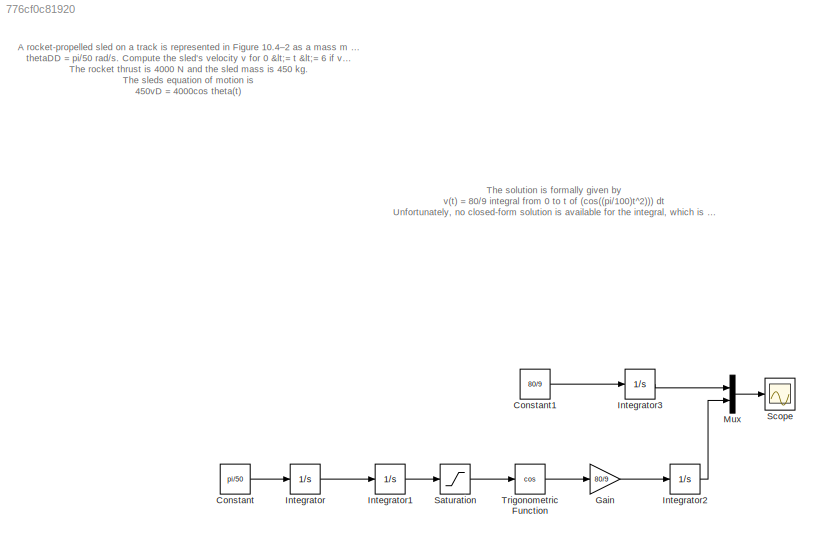
MODEL slx_776cf0c81920
KIND model
CONFIG AbsTol = auto
CONFIG EnableMultiTasking = off
CONFIG FixedStep = auto
CONFIG MaxStep = auto
CONFIG MinStep = auto
CONFIG RelTol = 1e-3
CONFIG SampleTimeConstraint = Unconstrained
CONFIG SolverName = VariableStepAuto
CONFIG StartTime = 0.0
CONFIG StopTime = 10.0
BLOCK [Constant] Constant
  Value = pi/50
BLOCK [Constant] Constant1
  Value = 80/9
BLOCK [Gain] Gain
  Gain = 80/9
BLOCK [Integrator] Integrator
BLOCK [Integrator] Integrator1
BLOCK [Integrator] Integrator2
BLOCK [Integrator] Integrator3
BLOCK [Mux] Mux
  DisplayOption = bar
  Inputs = 2
BLOCK [Saturate] Saturation
  LowerLimit = 0
  UpperLimit = (60*pi)/180
BLOCK [Scope] Scope
  Floating = off
  NumInputPorts = 1
  ScopeSpecificationString = Simulink.scopes.TimeScopeBlockCfg('CurrentConfiguration', extmgr.ConfigurationSet(extmgr.Configuration('Core','General UI',true),extmgr.Configuration('Core','Source UI',true),extmgr.Configuration('Sources','WiredSimulink',true),extmgr.Configuration('Visuals','Time Domain',true,'SerializedDisplays',{struct('MinYLimReal','-11.11111','MaxYLimReal','100.00000','YLabelReal','','MinYLimMag','0.00000','M...<+1355ch>
BLOCK [Trigonometry] Trigonometric Function
  Operator = cos
ANNOTATION (root): A rocket-propelled sled on a track is represented in Figure 10.4–2 as a mass m with an applied force f that represents the rocket thrust. The rocket thrust initially is horizontal, but the engine accidentally pivots during ring and rotates with an angular acceleration of thetaDD = pi/50 rad/s. Compute the sled's velocity v for 0 <= t <= 6 if v(0) = 0. The rocket thrust is 4000 N and the sled mass ...<+67ch>
ANNOTATION (root): The solution is formally given by v(t) = 80/9 integral from 0 to t of (cos((pi/100)t^2))) dt Unfortunately, no closed-form solution is available for the integral, which is called Fresnel’s cosine integral
LINE Constant1:1 -> Integrator3:1
LINE Constant:1 -> Integrator:1
LINE Gain:1 -> Integrator2:1
LINE Integrator1:1 -> Saturation:1
LINE Integrator2:1 -> Mux:2
LINE Integrator3:1 -> Mux:1
LINE Integrator:1 -> Integrator1:1
LINE Mux:1 -> Scope:1
LINE Saturation:1 -> Trigonometric Function:1
LINE Trigonometric Function:1 -> Gain:1
